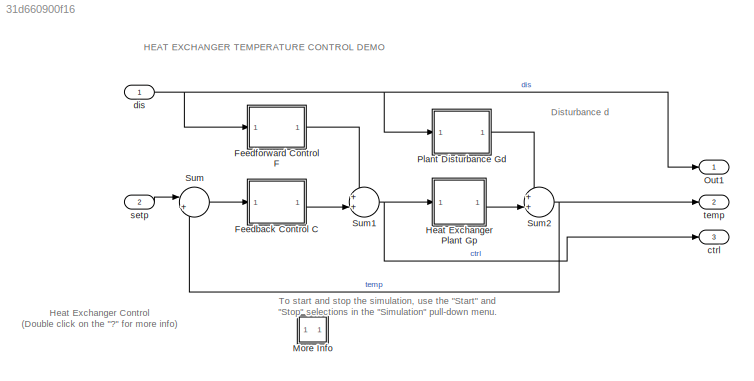
MODEL slx_31d660900f16
KIND model
CONFIG AbsTol = auto
CONFIG EnableMultiTasking = on
CONFIG FixedStep = 2
CONFIG MaxStep = auto
CONFIG MinStep = auto
CONFIG RelTol = 1e-3
CONFIG SampleTimeConstraint = Unconstrained
CONFIG Solver = ode4
CONFIG SolverName = ode4
CONFIG StartTime = 0.0
CONFIG StopTime = 200
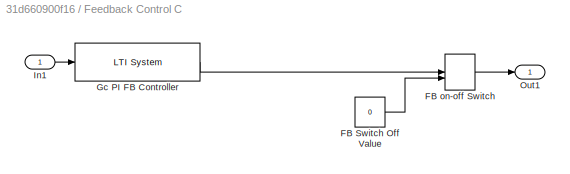
BLOCK [SubSystem] Feedback Control C
  Ports = [1, 1]
  RequestExecContextInheritance = off
BLOCK [Constant] Feedback Control C/FB Switch Off Value
  Value = 0
BLOCK [ManualSwitch] Feedback Control C/FB on-off Switch
  OpenFcn = manswitch('Open');heatex_clbk('FBSelect')
BLOCK [Reference] Feedback Control C/Gc PI FB Controller  REF=cstblocks/LTI System
  Ports = [1, 1]
  SourceBlock = cstblocks/LTI System
  SourceProductBaseCode = CT
  SourceType = LTI Block
BLOCK [Inport] Feedback Control C/In1
BLOCK [Outport] Feedback Control C/Out1
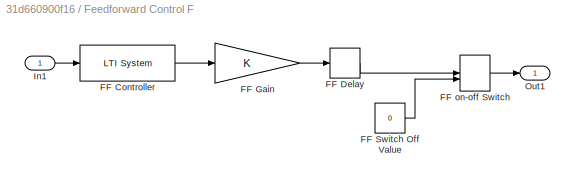
BLOCK [SubSystem] Feedforward Control F
  Ports = [1, 1]
  RequestExecContextInheritance = off
BLOCK [Reference] Feedforward Control F/FF Controller  REF=cstblocks/LTI System
  Ports = [1, 1]
  SourceBlock = cstblocks/LTI System
  SourceProductBaseCode = CT
  SourceType = LTI Block
BLOCK [TransportDelay] Feedforward Control F/FF Delay
  CloseFcn = disp('hello')
  DelayTime = 25
  Ports = [1, 1]
BLOCK [Gain] Feedforward Control F/FF Gain
  CloseFcn = disp('hello')
  OutDataTypeStr = Inherit: Same as input
  ParamDataTypeStr = Inherit: Same as input
  SaturateOnIntegerOverflow = on
BLOCK [Constant] Feedforward Control F/FF Switch Off Value
  Value = 0
BLOCK [ManualSwitch] Feedforward Control F/FF on-off Switch
  CurrentSetting = 0
  OpenFcn = manswitch('Open');heatex_clbk('FFSelect')
BLOCK [Inport] Feedforward Control F/In1
BLOCK [Outport] Feedforward Control F/Out1
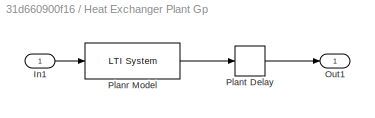
BLOCK [SubSystem] Heat Exchanger Plant Gp
  Ports = [1, 1]
  RequestExecContextInheritance = off
BLOCK [Inport] Heat Exchanger Plant Gp/In1
BLOCK [Outport] Heat Exchanger Plant Gp/Out1
BLOCK [Reference] Heat Exchanger Plant Gp/Planr Model  REF=cstblocks/LTI System
  Ports = [1, 1]
  SourceBlock = cstblocks/LTI System
  SourceProductBaseCode = CT
  SourceType = LTI Block
BLOCK [TransportDelay] Heat Exchanger Plant Gp/Plant Delay
  DelayTime = 14.7
  Ports = [1, 1]
BLOCK [SubSystem] More Info
  Ports = []
  RequestExecContextInheritance = off
BLOCK [Outport] Out1
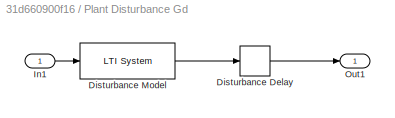
BLOCK [SubSystem] Plant Disturbance Gd
  Ports = [1, 1]
  RequestExecContextInheritance = off
BLOCK [TransportDelay] Plant Disturbance Gd/Disturbance Delay
  DelayTime = 35
  Ports = [1, 1]
BLOCK [Reference] Plant Disturbance Gd/Disturbance Model  REF=cstblocks/LTI System
  Ports = [1, 1]
  SourceBlock = cstblocks/LTI System
  SourceProductBaseCode = CT
  SourceType = LTI Block
BLOCK [Inport] Plant Disturbance Gd/In1
BLOCK [Outport] Plant Disturbance Gd/Out1
BLOCK [Sum] Sum
  InputSameDT = on
  Inputs = |+-
  OutDataTypeStr = Inherit: Same as first input
  Ports = [2, 1]
  SaturateOnIntegerOverflow = on
BLOCK [Sum] Sum1
  InputSameDT = on
  Inputs = ++|
  OutDataTypeStr = Inherit: Same as first input
  Ports = [2, 1]
  SaturateOnIntegerOverflow = on
BLOCK [Sum] Sum2
  InputSameDT = on
  Inputs = ++|
  OutDataTypeStr = Inherit: Same as first input
  Ports = [2, 1]
  SaturateOnIntegerOverflow = on
BLOCK [Outport] ctrl
  Port = 3
BLOCK [Inport] dis
BLOCK [Inport] setp
  Port = 2
BLOCK [Outport] temp
  Port = 2
ANNOTATION (root): Disturbance d
ANNOTATION (root): HEAT EXCHANGER TEMPERATURE CONTROL DEMO
ANNOTATION (root): Heat Exchanger Control (Double click on the "?" for more info)
ANNOTATION (root): To start and stop the simulation, use the "Start" and "Stop" selections in the "Simulation" pull-down menu.
ANNOTATION More Info: This demonstration shows the temperature control of a continuous stirred tank reactor (CSTR) using a heat exchanger. The controllers have been designed to regulate the temperature of the liquid in the tank when subject to disturbances in the temperature of inlet flow.
ANNOTATION More Info: Try experimenting with switching between using Feedforward and/or Feedback control. Type heatex at the MATLAB prompt to see the demo.
LINE Feedback Control C/FB Switch Off Value:1 -> Feedback Control C/FB on-off Switch:2
LINE Feedback Control C/FB on-off Switch:1 -> Feedback Control C/Out1:1
LINE Feedback Control C/Gc PI FB Controller:1 -> Feedback Control C/FB on-off Switch:1
LINE Feedback Control C/In1:1 -> Feedback Control C/Gc PI FB Controller:1
LINE Feedback Control C:1 -> Sum1:2
LINE Feedforward Control F/FF Controller:1 -> Feedforward Control F/FF Gain:1
LINE Feedforward Control F/FF Delay:1 -> Feedforward Control F/FF on-off Switch:1
LINE Feedforward Control F/FF Gain:1 -> Feedforward Control F/FF Delay:1
LINE Feedforward Control F/FF Switch Off Value:1 -> Feedforward Control F/FF on-off Switch:2
LINE Feedforward Control F/FF on-off Switch:1 -> Feedforward Control F/Out1:1
LINE Feedforward Control F/In1:1 -> Feedforward Control F/FF Controller:1
LINE Feedforward Control F:1 -> Sum1:1
LINE Heat Exchanger Plant Gp/In1:1 -> Heat Exchanger Plant Gp/Planr Model:1
LINE Heat Exchanger Plant Gp/Planr Model:1 -> Heat Exchanger Plant Gp/Plant Delay:1
LINE Heat Exchanger Plant Gp/Plant Delay:1 -> Heat Exchanger Plant Gp/Out1:1
LINE Heat Exchanger Plant Gp:1 -> Sum2:2
LINE Plant Disturbance Gd/Disturbance Delay:1 -> Plant Disturbance Gd/Out1:1
LINE Plant Disturbance Gd/Disturbance Model:1 -> Plant Disturbance Gd/Disturbance Delay:1
LINE Plant Disturbance Gd/In1:1 -> Plant Disturbance Gd/Disturbance Model:1
LINE Plant Disturbance Gd:1 -> Sum2:1
NET Sum1:1 -> Heat Exchanger Plant Gp:1, ctrl:1
NET Sum2:1 -> Sum:2, temp:1
LINE Sum:1 -> Feedback Control C:1
NET dis:1 -> Feedforward Control F:1, Out1:1, Plant Disturbance Gd:1
LINE setp:1 -> Sum:1
note: NET lines group one-source signal fan-out (src -> all destinations, sorted); 1:1 wires keep LINE
